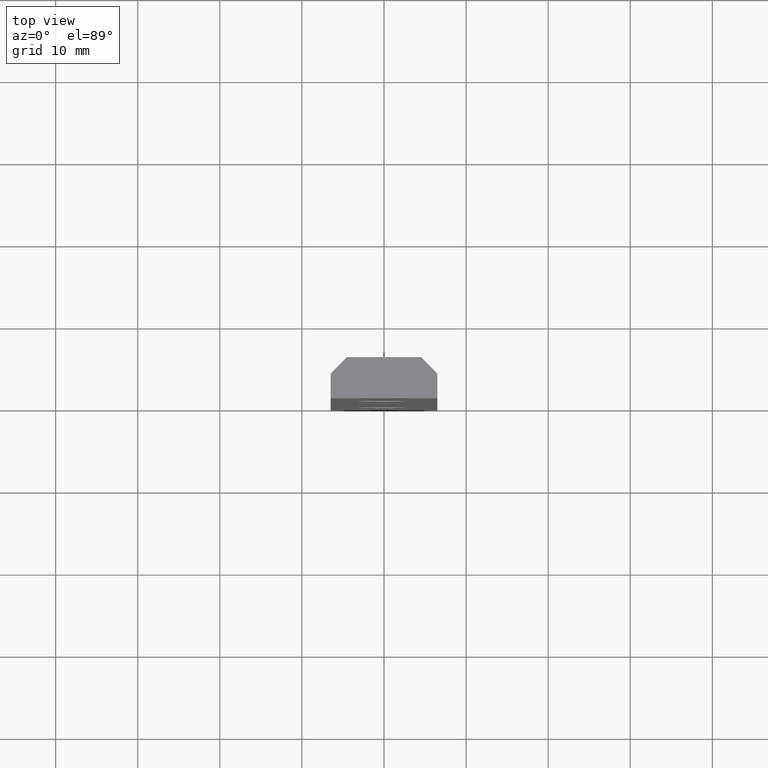
[diagram: clean part render]
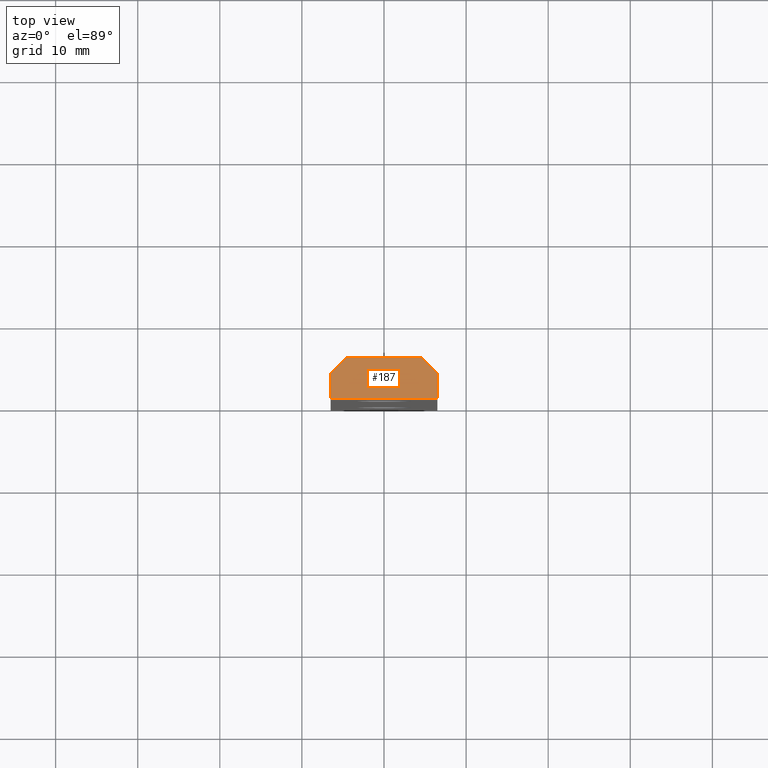
[diagram: same view with one face highlighted and labeled with its STEP entity id]
A machine part, top view. The second image highlights one B-rep face of the part: STEP entity #187.
In plain terms, the highlighted planar face has unit normal (0, 0, 1).
Its self-contained STEP definition (entity closure, byte-faithful):
#17=LINE('',#271,#35);
#20=LINE('',#277,#38);
#23=LINE('',#283,#41);
#26=LINE('',#289,#44);
#29=LINE('',#295,#47);
#32=LINE('',#299,#50);
#35=VECTOR('',#223,3.);
#38=VECTOR('',#228,2.82842712474619);
#41=VECTOR('',#233,9.);
#44=VECTOR('',#238,2.82842712474619);
#47=VECTOR('',#243,3.);
#50=VECTOR('',#248,13.);
#57=PLANE('',#203);
#73=FACE_OUTER_BOUND('',#89,.T.);
#89=EDGE_LOOP('',(#165,#166,#167,#168,#169,#170));
#101=VERTEX_POINT('',#268);
#102=VERTEX_POINT('',#270);
#104=VERTEX_POINT('',#276);
#106=VERTEX_POINT('',#282);
#108=VERTEX_POINT('',#288);
#110=VERTEX_POINT('',#294);
#117=EDGE_CURVE('',#102,#101,#17,.T.);
#120=EDGE_CURVE('',#104,#102,#20,.T.);
#123=EDGE_CURVE('',#106,#104,#23,.T.);
#126=EDGE_CURVE('',#108,#106,#26,.T.);
#129=EDGE_CURVE('',#110,#108,#29,.T.);
#132=EDGE_CURVE('',#101,#110,#32,.T.);
#165=ORIENTED_EDGE('',*,*,#132,.T.);
#166=ORIENTED_EDGE('',*,*,#129,.T.);
#167=ORIENTED_EDGE('',*,*,#126,.T.);
#168=ORIENTED_EDGE('',*,*,#123,.T.);
#169=ORIENTED_EDGE('',*,*,#120,.T.);
#170=ORIENTED_EDGE('',*,*,#117,.T.);
#187=ADVANCED_FACE('',(#73),#57,.T.);
#203=AXIS2_PLACEMENT_3D('',#300,#249,#250);
#223=DIRECTION('',(0.,-1.,0.));
#228=DIRECTION('',(-0.707106781186548,-0.707106781186547,0.));
#233=DIRECTION('',(-1.,0.,0.));
#238=DIRECTION('',(-0.707106781186548,0.707106781186547,0.));
#243=DIRECTION('',(0.,1.,0.));
#248=DIRECTION('',(1.,0.,0.));
#249=DIRECTION('center_axis',(0.,0.,1.));
#250=DIRECTION('ref_axis',(1.,0.,0.));
#268=CARTESIAN_POINT('',(-6.5,0.,88.));
#270=CARTESIAN_POINT('',(-6.5,3.,88.));
#271=CARTESIAN_POINT('',(-6.5,3.,88.));
#276=CARTESIAN_POINT('',(-4.5,5.,88.));
#277=CARTESIAN_POINT('',(-4.5,5.,88.));
#282=CARTESIAN_POINT('',(4.5,5.,88.));
#283=CARTESIAN_POINT('',(4.5,5.,88.));
#288=CARTESIAN_POINT('',(6.5,3.,88.));
#289=CARTESIAN_POINT('',(6.5,3.,88.));
#294=CARTESIAN_POINT('',(6.5,0.,88.));
#295=CARTESIAN_POINT('',(6.5,0.,88.));
#299=CARTESIAN_POINT('',(-6.5,0.,88.));
#300=CARTESIAN_POINT('Origin',(0.,2.27672546073212,88.));